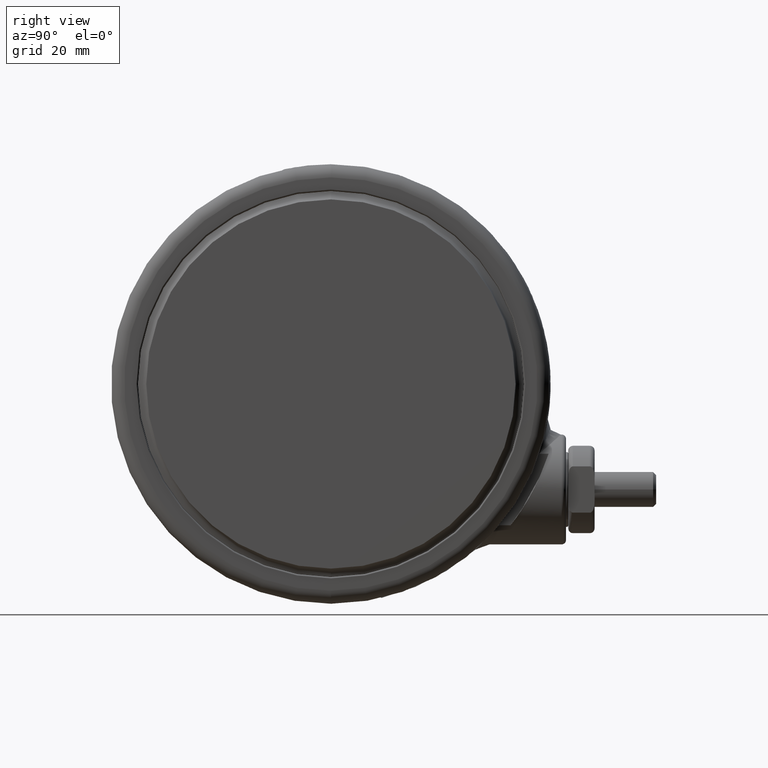
[diagram: clean part render]
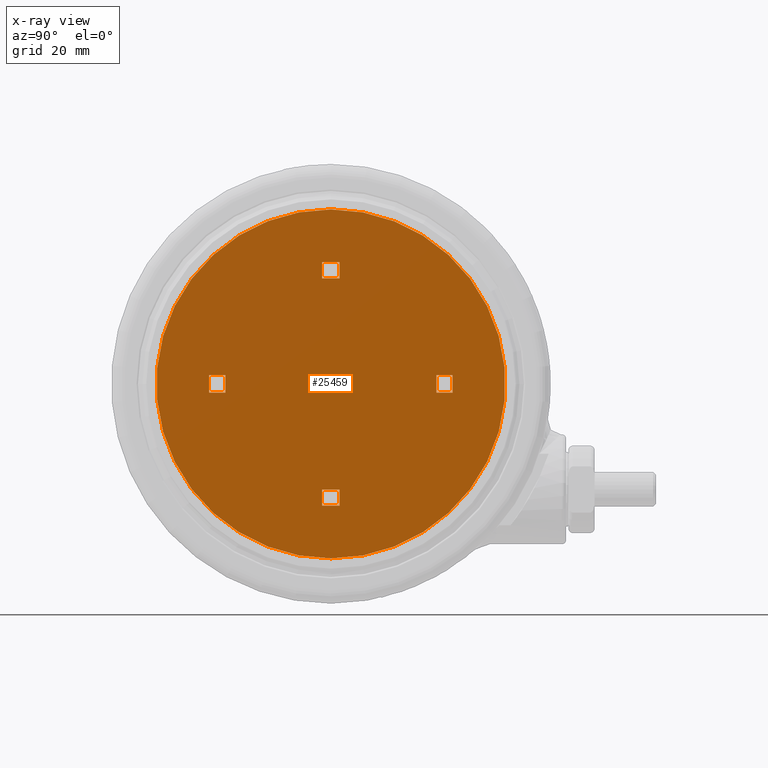
[diagram: x-ray — body ghosted, one internal face saturated and labeled with its STEP entity id]
A machine part, right view, then the same camera in x-ray: the body is ghosted and one INTERNAL B-rep face — a face not visible from any outside direction — is saturated and labeled: STEP entity #25459.
In plain terms, the highlighted planar face has unit normal (-1, 0, 0).
Its self-contained STEP definition (entity closure, byte-faithful):
#77 = VECTOR ( 'NONE', #20163, 1000.000000000000000 ) ;
#352 = VECTOR ( 'NONE', #25412, 1000.000000000000000 ) ;
#488 = CARTESIAN_POINT ( 'NONE',  ( 1.787450050710780100E-015, 40.50000000000000000, -46.79999999999990500 ) ) ;
#532 = CARTESIAN_POINT ( 'NONE',  ( 2.071189651961985400E-014, 2.000000000000001800, -46.79999999999990500 ) ) ;
#594 = ORIENTED_EDGE ( 'NONE', *, *, #5022, .F. ) ;
#663 = DIRECTION ( 'NONE',  ( 1.051857858568275400E-014, 1.000000000000000000, 8.826913830670518300E-017 ) ) ;
#796 = ORIENTED_EDGE ( 'NONE', *, *, #20022, .T. ) ;
#798 = CARTESIAN_POINT ( 'NONE',  ( -39.69999999999999600, 3.327981422412835400E-015, -46.79999999999990500 ) ) ;
#857 = EDGE_LOOP ( 'NONE', ( #796, #27147, #22157, #594 ) ) ;
#995 = CARTESIAN_POINT ( 'NONE',  ( 39.69999999999999600, 4.681568813233502500E-015, -46.79999999999990500 ) ) ;
#1582 = VECTOR ( 'NONE', #9617, 1000.000000000000000 ) ;
#1839 = LINE ( 'NONE', #29945, #26850 ) ;
#2216 = ORIENTED_EDGE ( 'NONE', *, *, #14265, .T. ) ;
#2217 = CARTESIAN_POINT ( 'NONE',  ( 2.000000000000000000, 1.162309236972380500E-015, -46.79999999999990500 ) ) ;
#2850 = CARTESIAN_POINT ( 'NONE',  ( -1.999999999999999100, 24.00000000000000000, -46.79999999999990500 ) ) ;
#3002 = PLANE ( 'NONE',  #24611 ) ;
#3003 = EDGE_CURVE ( 'NONE', #18143, #13038, #21513, .T. ) ;
#3066 = CARTESIAN_POINT ( 'NONE',  ( 1.222527565547866700E-015, 27.70000000000000300, -46.79999999999990500 ) ) ;
#3229 = LINE ( 'NONE', #3066, #29030 ) ;
#3325 = VERTEX_POINT ( 'NONE', #995 ) ;
#3462 = ORIENTED_EDGE ( 'NONE', *, *, #17691, .T. ) ;
#3609 = DIRECTION ( 'NONE',  ( -4.413456915335259200E-017, -1.000000000000000000, 9.243122377421230500E-017 ) ) ;
#4080 = FACE_OUTER_BOUND ( 'NONE', #15136, .T. ) ;
#4837 = CARTESIAN_POINT ( 'NONE',  ( -24.00000000000000000, 2.000000000000252200, -46.79999999999990500 ) ) ;
#4937 = VECTOR ( 'NONE', #3609, 1000.000000000000000 ) ;
#4958 = DIRECTION ( 'NONE',  ( -1.000000000000000000, 4.413456915335259200E-017, 4.709952866388670900E-033 ) ) ;
#5022 = EDGE_CURVE ( 'NONE', #6142, #6385, #12354, .T. ) ;
#5105 = EDGE_CURVE ( 'NONE', #14439, #3325, #29158, .T. ) ;
#5201 = EDGE_CURVE ( 'NONE', #18888, #12856, #26055, .T. ) ;
#5426 = EDGE_LOOP ( 'NONE', ( #29802, #25313, #25032, #14936 ) ) ;
#5506 = DIRECTION ( 'NONE',  ( -1.000000000000000000, 4.413456915335259200E-017, 4.709952866388670900E-033 ) ) ;
#5626 = DIRECTION ( 'NONE',  ( -1.000000000000000000, 3.535615907996487800E-015, 1.807003620809178100E-016 ) ) ;
#6142 = VERTEX_POINT ( 'NONE', #22456 ) ;
#6305 = EDGE_CURVE ( 'NONE', #18888, #13099, #16637, .T. ) ;
#6385 = VERTEX_POINT ( 'NONE', #28460 ) ;
#6837 = ORIENTED_EDGE ( 'NONE', *, *, #20029, .T. ) ;
#6978 = VERTEX_POINT ( 'NONE', #26485 ) ;
#7442 = CARTESIAN_POINT ( 'NONE',  ( -2.000000000000000900, -24.00000000000000000, -46.79999999999991200 ) ) ;
#7459 = ORIENTED_EDGE ( 'NONE', *, *, #26341, .T. ) ;
#7482 = CARTESIAN_POINT ( 'NONE',  ( -2.000000000000001300, -27.69999999999999600, -46.79999999999991200 ) ) ;
#7553 = LINE ( 'NONE', #16322, #12634 ) ;
#8025 = EDGE_CURVE ( 'NONE', #6978, #14376, #15356, .T. ) ;
#8065 = ORIENTED_EDGE ( 'NONE', *, *, #15593, .F. ) ;
#8087 = CARTESIAN_POINT ( 'NONE',  ( -27.69999999999959800, 40.50000000000000000, -46.79999999999990500 ) ) ;
#8171 = VERTEX_POINT ( 'NONE', #26208 ) ;
#8713 = VECTOR ( 'NONE', #18007, 1000.000000000000000 ) ;
#8831 = CARTESIAN_POINT ( 'NONE',  ( 24.00000000000000000, 1.999999999999915800, -46.79999999999990500 ) ) ;
#9077 = EDGE_CURVE ( 'NONE', #13038, #6385, #30889, .T. ) ;
#9190 = VECTOR ( 'NONE', #28839, 1000.000000000000000 ) ;
#9617 = DIRECTION ( 'NONE',  ( -4.413456915335259200E-017, -1.000000000000000000, 9.243122377421230500E-017 ) ) ;
#10319 = DIRECTION ( 'NONE',  ( -8.142324776845467900E-034, 8.826913830670518300E-017, -1.000000000000000000 ) ) ;
#10485 = EDGE_LOOP ( 'NONE', ( #3462, #2216, #7459, #23602 ) ) ;
#10708 = FACE_BOUND ( 'NONE', #857, .T. ) ;
#10782 = VECTOR ( 'NONE', #5626, 1000.000000000000000 ) ;
#10971 = VECTOR ( 'NONE', #25821, 1000.000000000000000 ) ;
#11925 = CIRCLE ( 'NONE', #22823, 39.69999999999999600 ) ;
#12354 = LINE ( 'NONE', #21092, #4937 ) ;
#12557 = DIRECTION ( 'NONE',  ( 8.142324776845440500E-034, -8.826913830670518300E-017, 1.000000000000000000 ) ) ;
#12634 = VECTOR ( 'NONE', #18825, 1000.000000000000000 ) ;
#12711 = CARTESIAN_POINT ( 'NONE',  ( 1.999999999999998700, -27.69999999999999600, -46.79999999999991200 ) ) ;
#12856 = VERTEX_POINT ( 'NONE', #15630 ) ;
#13038 = VERTEX_POINT ( 'NONE', #15544 ) ;
#13099 = VERTEX_POINT ( 'NONE', #23726 ) ;
#13192 = CARTESIAN_POINT ( 'NONE',  ( 27.69999999999999900, 1.999999999999905400, -46.79999999999990500 ) ) ;
#13273 = VERTEX_POINT ( 'NONE', #31997 ) ;
#13362 = LINE ( 'NONE', #17658, #77 ) ;
#13380 = EDGE_CURVE ( 'NONE', #3325, #14439, #11925, .T. ) ;
#13421 = LINE ( 'NONE', #2217, #25948 ) ;
#13639 = LINE ( 'NONE', #20364, #352 ) ;
#13852 = VERTEX_POINT ( 'NONE', #22145 ) ;
#13876 = DIRECTION ( 'NONE',  ( 8.142324776845440500E-034, -8.826913830670518300E-017, 1.000000000000000000 ) ) ;
#14265 = EDGE_CURVE ( 'NONE', #25396, #25903, #21646, .T. ) ;
#14303 = CARTESIAN_POINT ( 'NONE',  ( 27.70000000000000300, 40.50000000000000000, -46.79999999999990500 ) ) ;
#14315 = EDGE_CURVE ( 'NONE', #32130, #8171, #13421, .T. ) ;
#14376 = VERTEX_POINT ( 'NONE', #4837 ) ;
#14439 = VERTEX_POINT ( 'NONE', #798 ) ;
#14936 = ORIENTED_EDGE ( 'NONE', *, *, #6305, .F. ) ;
#15048 = LINE ( 'NONE', #8831, #9190 ) ;
#15136 = EDGE_LOOP ( 'NONE', ( #20953, #17114 ) ) ;
#15356 = LINE ( 'NONE', #532, #8713 ) ;
#15544 = CARTESIAN_POINT ( 'NONE',  ( 2.000000000000000900, 24.00000000000000000, -46.79999999999990500 ) ) ;
#15593 = EDGE_CURVE ( 'NONE', #13273, #13852, #13639, .T. ) ;
#15630 = CARTESIAN_POINT ( 'NONE',  ( 27.69999999999999900, -2.000000000000094600, -46.79999999999990500 ) ) ;
#15998 = EDGE_LOOP ( 'NONE', ( #6837, #21784, #19685, #8065 ) ) ;
#16322 = CARTESIAN_POINT ( 'NONE',  ( -24.00000000000000000, -1.999999999999747500, -46.79999999999990500 ) ) ;
#16637 = LINE ( 'NONE', #23112, #10782 ) ;
#16815 = DIRECTION ( 'NONE',  ( -3.535615907996487800E-015, -1.000000000000000000, -8.826913830670518300E-017 ) ) ;
#17114 = ORIENTED_EDGE ( 'NONE', *, *, #13380, .T. ) ;
#17348 = FACE_BOUND ( 'NONE', #10485, .T. ) ;
#17412 = AXIS2_PLACEMENT_3D ( 'NONE', #28842, #13876, #31327 ) ;
#17658 = CARTESIAN_POINT ( 'NONE',  ( -6.745971164247315500E-015, -1.999999999999998200, -46.79999999999990500 ) ) ;
#17691 = EDGE_CURVE ( 'NONE', #32130, #25396, #1839, .T. ) ;
#18007 = DIRECTION ( 'NONE',  ( 1.000000000000000000, -1.051857858568275400E-014, 1.807003620809165500E-016 ) ) ;
#18026 = DIRECTION ( 'NONE',  ( 1.000000000000000000, -4.413456915335259200E-017, -4.709952866388670900E-033 ) ) ;
#18135 = FACE_BOUND ( 'NONE', #15998, .T. ) ;
#18143 = VERTEX_POINT ( 'NONE', #24379 ) ;
#18437 = CARTESIAN_POINT ( 'NONE',  ( 24.00000000000000000, -2.000000000000084400, -46.79999999999990500 ) ) ;
#18605 = VECTOR ( 'NONE', #16815, 1000.000000000000000 ) ;
#18825 = DIRECTION ( 'NONE',  ( -1.051857858568275400E-014, -1.000000000000000000, -8.826913830670518300E-017 ) ) ;
#18888 = VERTEX_POINT ( 'NONE', #13192 ) ;
#19316 = CARTESIAN_POINT ( 'NONE',  ( 1.999999999999999100, -24.00000000000000000, -46.79999999999991200 ) ) ;
#19558 = CARTESIAN_POINT ( 'NONE',  ( 2.000000000000000000, 1.812830540463684800E-015, -46.79999999999990500 ) ) ;
#19629 = EDGE_CURVE ( 'NONE', #14376, #13852, #7553, .T. ) ;
#19685 = ORIENTED_EDGE ( 'NONE', *, *, #19629, .T. ) ;
#20022 = EDGE_CURVE ( 'NONE', #6142, #18143, #3229, .T. ) ;
#20029 = EDGE_CURVE ( 'NONE', #13273, #6978, #22377, .T. ) ;
#20163 = DIRECTION ( 'NONE',  ( -1.000000000000000000, 3.535615907996487800E-015, 1.807003620809178100E-016 ) ) ;
#20364 = CARTESIAN_POINT ( 'NONE',  ( -2.136241782311115700E-014, -1.999999999999998200, -46.79999999999990500 ) ) ;
#20634 = EDGE_CURVE ( 'NONE', #12856, #21831, #13362, .T. ) ;
#20953 = ORIENTED_EDGE ( 'NONE', *, *, #5105, .T. ) ;
#21092 = CARTESIAN_POINT ( 'NONE',  ( -2.000000000000000000, 1.989368817077094900E-015, -46.79999999999990500 ) ) ;
#21513 = LINE ( 'NONE', #19558, #1582 ) ;
#21646 = LINE ( 'NONE', #22002, #27499 ) ;
#21784 = ORIENTED_EDGE ( 'NONE', *, *, #8025, .T. ) ;
#21831 = VERTEX_POINT ( 'NONE', #18437 ) ;
#21851 = DIRECTION ( 'NONE',  ( 1.000000000000000000, -4.413456915335259200E-017, -4.709952866388670900E-033 ) ) ;
#22002 = CARTESIAN_POINT ( 'NONE',  ( -2.000000000000000000, 1.338847513585790800E-015, -46.79999999999990500 ) ) ;
#22145 = CARTESIAN_POINT ( 'NONE',  ( -24.00000000000000000, -1.999999999999747500, -46.79999999999990500 ) ) ;
#22157 = ORIENTED_EDGE ( 'NONE', *, *, #9077, .T. ) ;
#22377 = LINE ( 'NONE', #8087, #28257 ) ;
#22456 = CARTESIAN_POINT ( 'NONE',  ( -1.999999999999998700, 27.70000000000000300, -46.79999999999990500 ) ) ;
#22823 = AXIS2_PLACEMENT_3D ( 'NONE', #27530, #12557, #30010 ) ;
#23112 = CARTESIAN_POINT ( 'NONE',  ( 7.396492467738625300E-015, 2.000000000000001800, -46.79999999999990500 ) ) ;
#23602 = ORIENTED_EDGE ( 'NONE', *, *, #14315, .F. ) ;
#23726 = CARTESIAN_POINT ( 'NONE',  ( 24.00000000000000000, 1.999999999999915800, -46.79999999999990500 ) ) ;
#23782 = EDGE_CURVE ( 'NONE', #21831, #13099, #15048, .T. ) ;
#24001 = FACE_BOUND ( 'NONE', #5426, .T. ) ;
#24379 = CARTESIAN_POINT ( 'NONE',  ( 2.000000000000001300, 27.70000000000000300, -46.79999999999990500 ) ) ;
#24515 = DIRECTION ( 'NONE',  ( 4.413456915335259200E-017, 1.000000000000000000, 2.689695003876226800E-016 ) ) ;
#24611 = AXIS2_PLACEMENT_3D ( 'NONE', #488, #10319, #5506 ) ;
#25032 = ORIENTED_EDGE ( 'NONE', *, *, #23782, .T. ) ;
#25313 = ORIENTED_EDGE ( 'NONE', *, *, #20634, .T. ) ;
#25396 = VERTEX_POINT ( 'NONE', #7482 ) ;
#25412 = DIRECTION ( 'NONE',  ( 1.000000000000000000, -1.051857858568275400E-014, 1.807003620809165500E-016 ) ) ;
#25459 = ADVANCED_FACE ( 'NONE', ( #18135, #17348, #24001, #10708, #4080 ), #3002, .F. ) ;
#25821 = DIRECTION ( 'NONE',  ( -1.000000000000000000, 4.413456915335259200E-017, 4.709952866388670900E-033 ) ) ;
#25903 = VERTEX_POINT ( 'NONE', #7442 ) ;
#25948 = VECTOR ( 'NONE', #32134, 1000.000000000000000 ) ;
#26055 = LINE ( 'NONE', #14303, #18605 ) ;
#26208 = CARTESIAN_POINT ( 'NONE',  ( 1.999999999999999100, -24.00000000000000000, -46.79999999999991200 ) ) ;
#26341 = EDGE_CURVE ( 'NONE', #25903, #8171, #31345, .T. ) ;
#26485 = CARTESIAN_POINT ( 'NONE',  ( -27.69999999999999900, 2.000000000000293100, -46.79999999999990500 ) ) ;
#26850 = VECTOR ( 'NONE', #4958, 1000.000000000000000 ) ;
#27147 = ORIENTED_EDGE ( 'NONE', *, *, #3003, .T. ) ;
#27499 = VECTOR ( 'NONE', #24515, 1000.000000000000000 ) ;
#27530 = CARTESIAN_POINT ( 'NONE',  ( 1.465618459832179300E-033, 1.575839027024737700E-015, -46.79999999999990500 ) ) ;
#28257 = VECTOR ( 'NONE', #663, 1000.000000000000000 ) ;
#28460 = CARTESIAN_POINT ( 'NONE',  ( -1.999999999999999100, 24.00000000000000000, -46.79999999999990500 ) ) ;
#28839 = DIRECTION ( 'NONE',  ( 3.535615907996487800E-015, 1.000000000000000000, 8.826913830670518300E-017 ) ) ;
#28842 = CARTESIAN_POINT ( 'NONE',  ( 1.465618459832179300E-033, 1.575839027024737700E-015, -46.79999999999990500 ) ) ;
#29030 = VECTOR ( 'NONE', #18026, 1000.000000000000000 ) ;
#29158 = CIRCLE ( 'NONE', #17412, 39.69999999999999600 ) ;
#29802 = ORIENTED_EDGE ( 'NONE', *, *, #5201, .T. ) ;
#29945 = CARTESIAN_POINT ( 'NONE',  ( -1.222527565547866700E-015, -27.69999999999999600, -46.79999999999991200 ) ) ;
#30010 = DIRECTION ( 'NONE',  ( -1.000000000000000000, 4.413456915335259200E-017, 0.0000000000000000000 ) ) ;
#30561 = VECTOR ( 'NONE', #21851, 1000.000000000000000 ) ;
#30889 = LINE ( 'NONE', #2850, #10971 ) ;
#31327 = DIRECTION ( 'NONE',  ( -1.000000000000000000, 4.413456915335259200E-017, 0.0000000000000000000 ) ) ;
#31345 = LINE ( 'NONE', #19316, #30561 ) ;
#31997 = CARTESIAN_POINT ( 'NONE',  ( -27.69999999999999900, -1.999999999999706900, -46.79999999999990500 ) ) ;
#32130 = VERTEX_POINT ( 'NONE', #12711 ) ;
#32134 = DIRECTION ( 'NONE',  ( 4.413456915335259200E-017, 1.000000000000000000, 2.689695003876226800E-016 ) ) ;